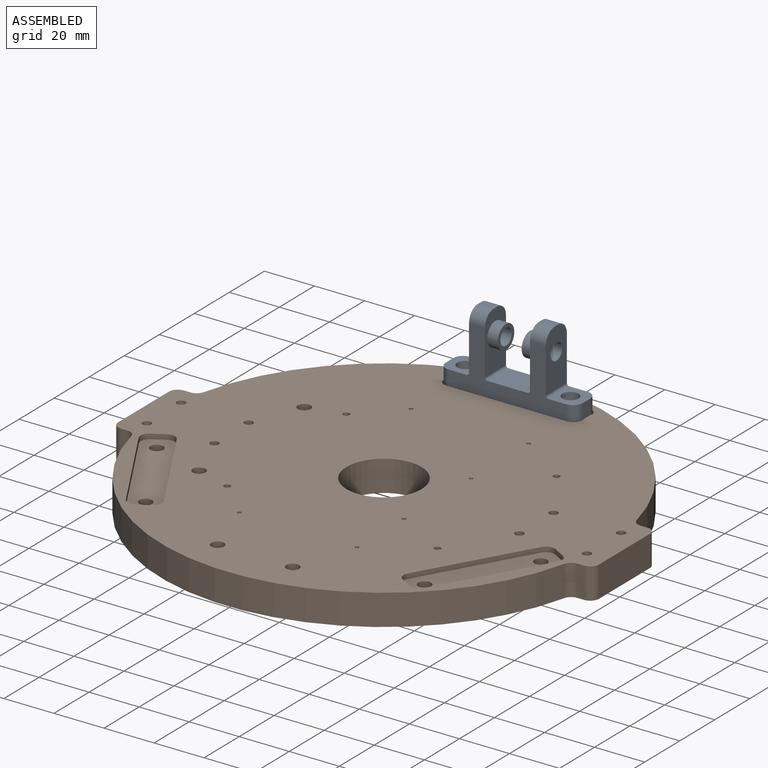
[diagram: assembled view]
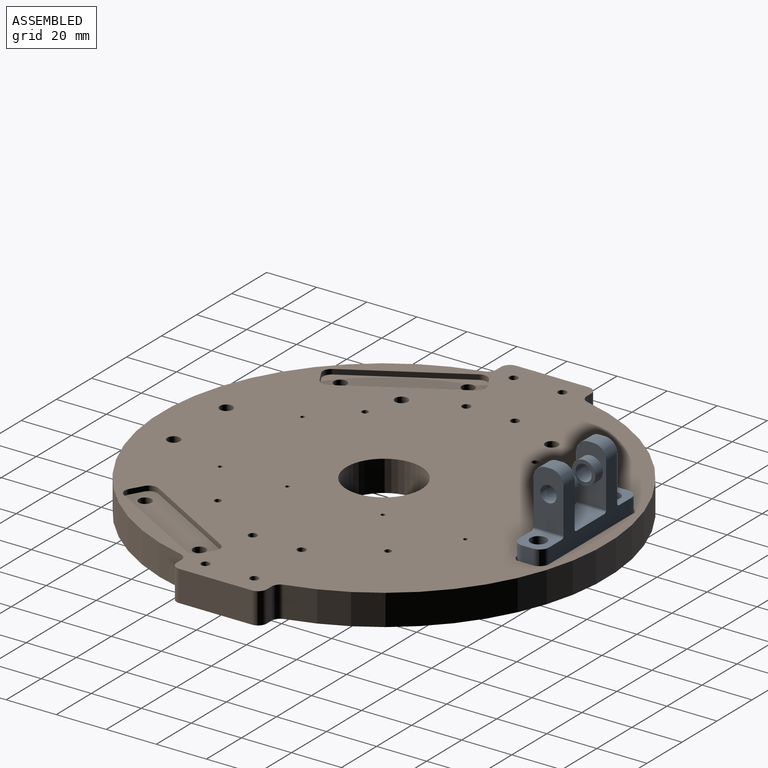
[diagram: assembled view, second angle]
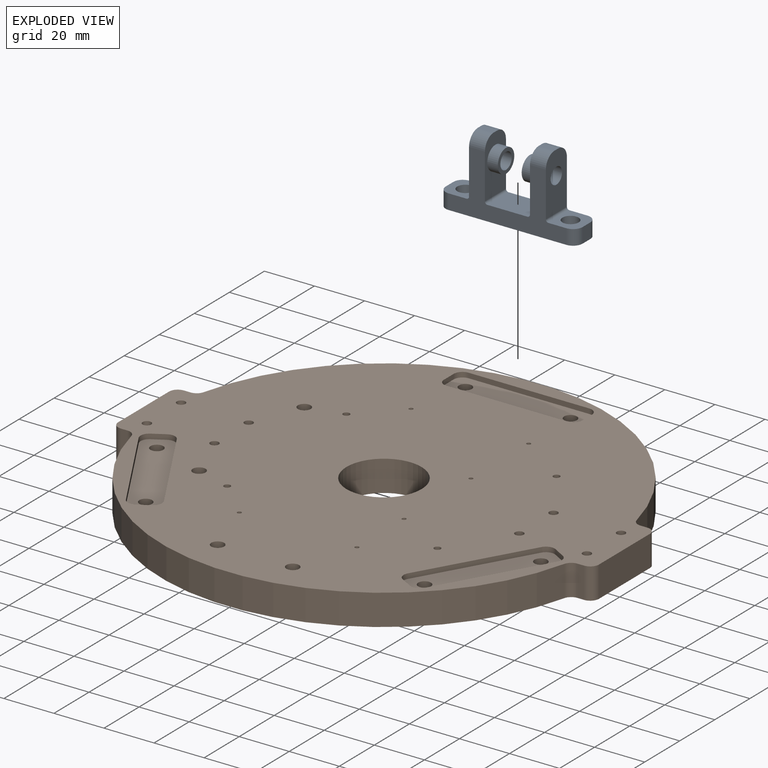
[diagram: exploded view]
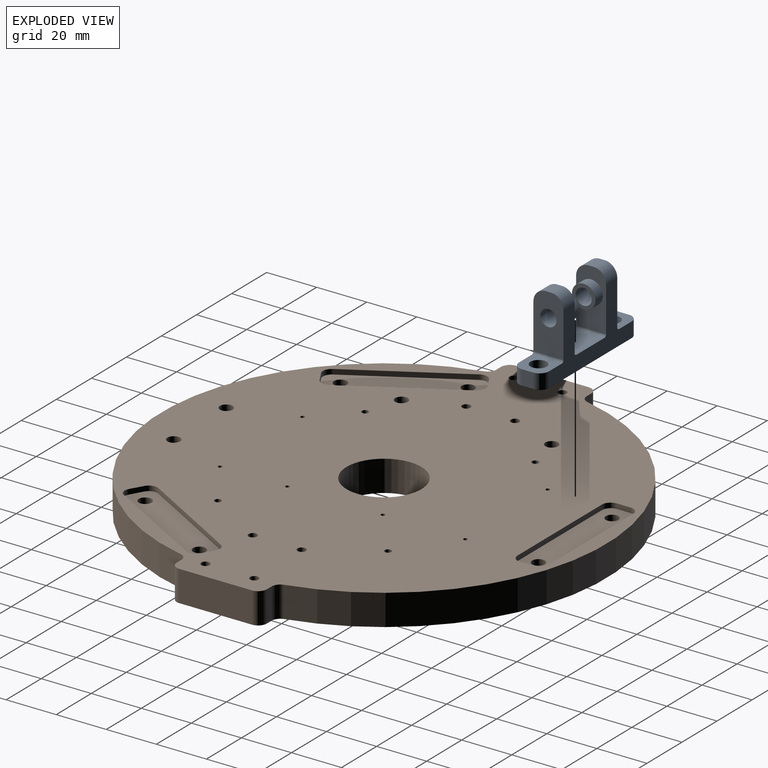
[diagram: exploded view, second angle]
ASSEMBLY  parts=2 mates=2
PART A: 34 faces, bbox 54.7x29.9x12 mm
  f0: cylinder r=3.25mm len=10.59mm, axis (1,0,0), area 216.2mm2, adj f9,f19
  f1: cylinder r=4.7mm len=9.4mm, axis (-1,0,0), area 125.1mm2, adj f3,f19
  f2: plane 6.35x2mm, normal (0,-1,0), area 12.7mm2, adj f3,f9,f14,f16
  f3: plane 22.95x12mm, normal (1,0,0), area 195.2mm2, adj f1,f2,f10,f11,f14,f16,f32
  f4: plane 16x12mm, normal (0,-1,0), area 192mm2, adj f10,f11,f32,f33
  f5: plane 22.95x12mm, normal (-1,0,0), area 195.2mm2, adj f6,f10,f11,f13,f15,f17,f33
  f6: plane 6.35x2mm, normal (0,-1,0), area 12.7mm2, adj f5,f7,f13,f15
  f7: plane 22.95x12mm, normal (1,0,0), area 231.4mm2, adj f6,f10,f11,f12,f13,f15,f31
  f8: plane 54.7x12mm, normal (0,1,0), area 577.6mm2, adj f10,f11,f21,f23,f24,f25,f26,f27
  f9: plane 22.95x12mm, normal (-1,0,0), area 231.4mm2, adj f0,f2,f10,f11,f14,f16,f30
  f10: plane 47.1x24.95mm, normal (0,0,1), area 524.1mm2, adj f3,f4,f5,f7,f8,f9,f15,f16
  f11: plane 47.1x24.95mm, normal (0,0,-1), area 524.1mm2, adj f3,f4,f5,f7,f8,f9,f13,f14
  f12: cylinder r=3.25mm len=10.59mm, axis (1,0,0), area 216.2mm2, adj f7,f18
  f13: cylinder r=5mm len=6.35mm, axis (1,0,0), area 49.9mm2, adj f5,f6,f7,f11
  f14: cylinder r=5mm len=6.35mm, axis (1,0,0), area 49.9mm2, adj f2,f3,f9,f11
  f15: cylinder r=5mm len=6.35mm, axis (-1,0,0), area 49.9mm2, adj f5,f6,f7,f10
  f16: cylinder r=5mm len=6.35mm, axis (-1,0,0), area 49.9mm2, adj f2,f3,f9,f10
  f17: cylinder r=4.7mm len=9.4mm, axis (-1,0,0), area 125.1mm2, adj f5,f18
  f18: plane 9.4x9.4mm, normal (-1,0,0), area 36.2mm2, adj f12,f17
  f19: plane 9.4x9.4mm, normal (1,0,0), area 36.2mm2, adj f0,f1
  f20: plane 12x11mm, normal (0,-1,0), area 92.6mm2, adj f10,f11,f21,f26,f27,f29,f31
  f21: plane 6x4.4mm, normal (1,0,0), area 26.4mm2, adj f8,f20,f26,f27
  f22: plane 12x11mm, normal (0,-1,0), area 92.6mm2, adj f10,f11,f23,f24,f25,f28,f30
  f23: plane 6x4.4mm, normal (-1,0,0), area 26.4mm2, adj f8,f22,f24,f25
  f24: cylinder r=3.8mm len=6mm, axis (0,1,0), area 35.8mm2, adj f8,f10,f22,f23
  f25: cylinder r=3.8mm len=6mm, axis (0,-1,0), area 35.8mm2, adj f8,f11,f22,f23
  f26: cylinder r=3.8mm len=6mm, axis (0,1,0), area 35.8mm2, adj f8,f11,f20,f21
  f27: cylinder r=3.8mm len=6mm, axis (0,-1,0), area 35.8mm2, adj f8,f10,f20,f21
  f28: cylinder r=3.25mm len=6.5mm, axis (0,-1,0), area 122.5mm2, adj f8,f22
  f29: cylinder r=3.25mm len=6.5mm, axis (0,-1,0), area 122.5mm2, adj f8,f20
  f30: cylinder r=1mm len=12mm, axis (0,0,1), area 18.8mm2, adj f9,f10,f11,f22
  f31: cylinder r=1mm len=12mm, axis (0,0,-1), area 18.8mm2, adj f7,f10,f11,f20
  f32: cylinder r=1mm len=12mm, axis (0,0,1), area 18.8mm2, adj f3,f4,f10,f11
  f33: cylinder r=1mm len=12mm, axis (0,0,1), area 18.8mm2, adj f4,f5,f10,f11
PART B: 84 faces, bbox 192.1x177.8x12.4 mm
  f0: plane 192.12x177.8mm, normal (0,0,1), area 22450.5mm2, adj f2,f3,f4,f5,f6,f7,f8,f9
  f1: plane 192.12x177.8mm, normal (0,0,-1), area 24399.5mm2, adj f2,f3,f4,f5,f6,f7,f8,f9
  f2: plane 12.37x2.7mm, normal (0,-1,0), area 33.3mm2, adj f0,f1,f56,f63
  f3: cylinder r=88.9mm len=172.92mm, axis (0,0,-1), area 2938.2mm2, adj f0,f1,f56,f57
  f4: plane 12.37x2.7mm, normal (0,-1,0), area 33.3mm2, adj f0,f1,f57,f58
  f5: plane 29x12.37mm, normal (1,0,0), area 358.7mm2, adj f0,f1,f58,f59
  f6: plane 12.37x2.7mm, normal (0,1,0), area 33.3mm2, adj f0,f1,f59,f60
  f7: cylinder r=88.9mm len=172.92mm, axis (0,0,-1), area 2938.2mm2, adj f0,f1,f60,f61
  f8: plane 12.37x2.7mm, normal (0,1,0), area 33.3mm2, adj f0,f1,f61,f62
  f9: plane 29x12.37mm, normal (-1,0,0), area 358.7mm2, adj f0,f1,f62,f63
  f10: cylinder r=15mm len=30mm, axis (0,0,1), area 1165.8mm2, adj f0,f1
  f11: plane 4.76x2.75mm, normal (0.5,0.87,0), area 11mm2, adj f0,f15,f26,f29
  f12: plane 41.74x24.1mm, normal (-0.87,0.5,0), area 96.4mm2, adj f0,f15,f28,f29
  f13: plane 4.76x2.75mm, normal (-0.5,-0.87,0), area 11mm2, adj f0,f15,f27,f28
  f14: plane 41.74x24.1mm, normal (0.87,-0.5,0), area 96.4mm2, adj f0,f15,f26,f27
  f15: plane 51.49x35.86mm, normal (0,0,1), area 638.5mm2, adj f11,f12,f13,f14,f26,f27,f28,f29
  f16: plane 4.76x2.75mm, normal (0.5,-0.87,0), area 11mm2, adj f0,f20,f30,f33
  f17: plane 41.74x24.1mm, normal (0.87,0.5,0), area 96.4mm2, adj f0,f20,f30,f31
  f18: plane 4.76x2.75mm, normal (-0.5,0.87,0), area 11mm2, adj f0,f20,f31,f32
  f19: plane 41.74x24.1mm, normal (-0.87,-0.5,0), area 96.4mm2, adj f0,f20,f32,f33
  f20: plane 51.49x35.86mm, normal (0,0,1), area 638.5mm2, adj f16,f17,f18,f19,f30,f31,f32,f33
  f21: plane 48.2x2mm, normal (0,-1,0), area 96.4mm2, adj f0,f25,f34,f37
  f22: plane 5.5x2mm, normal (1,0,0), area 11mm2, adj f0,f25,f36,f37
  f23: plane 48.2x2mm, normal (0,1,0), area 96.4mm2, adj f0,f25,f35,f36
  f24: plane 5.5x2mm, normal (-1,0,0), area 11mm2, adj f0,f25,f34,f35
  f25: plane 55.2x12.5mm, normal (0,0,1), area 638.5mm2, adj f21,f22,f23,f24,f34,f35,f36,f37
  f26: cylinder r=3.5mm len=4.78mm, axis (0,0,1), area 11mm2, adj f0,f11,f14,f15
  f27: cylinder r=3.5mm len=4.78mm, axis (0,0,-1), area 11mm2, adj f0,f13,f14,f15
  f28: cylinder r=3.5mm len=4.78mm, axis (0,0,1), area 11mm2, adj f0,f12,f13,f15
  f29: cylinder r=3.5mm len=4.78mm, axis (0,0,-1), area 11mm2, adj f0,f11,f12,f15
  f30: cylinder r=3.5mm len=4.78mm, axis (0,0,-1), area 11mm2, adj f0,f16,f17,f20
  f31: cylinder r=3.5mm len=4.78mm, axis (0,0,1), area 11mm2, adj f0,f17,f18,f20
  f32: cylinder r=3.5mm len=4.78mm, axis (0,0,-1), area 11mm2, adj f0,f18,f19,f20
  f33: cylinder r=3.5mm len=4.78mm, axis (0,0,1), area 11mm2, adj f0,f16,f19,f20
  f34: cylinder r=3.5mm len=3.5mm, axis (0,0,-1), area 11mm2, adj f0,f21,f24,f25
  f35: cylinder r=3.5mm len=3.5mm, axis (0,0,1), area 11mm2, adj f0,f23,f24,f25
  f36: cylinder r=3.5mm len=3.5mm, axis (0,0,-1), area 11mm2, adj f0,f22,f23,f25
  f37: cylinder r=3.5mm len=3.5mm, axis (0,0,1), area 11mm2, adj f0,f21,f22,f25
  f38: cylinder r=2.55mm len=10.37mm, axis (0,0,1), area 166.3mm2, adj f1,f25
  f39: cylinder r=2.55mm len=10.37mm, axis (0,0,1), area 166.3mm2, adj f1,f25
  f40: cylinder r=2.55mm len=10.37mm, axis (0,0,1), area 166.3mm2, adj f1,f20
  f41: cylinder r=2.55mm len=10.37mm, axis (0,0,1), area 166.3mm2, adj f1,f20
  f42: cylinder r=2.55mm len=10.37mm, axis (0,0,1), area 166.3mm2, adj f1,f15
  f43: cylinder r=2.55mm len=10.37mm, axis (0,0,1), area 166.3mm2, adj f1,f15
  f44: cylinder r=2.55mm len=12.37mm, axis (0,0,-1), area 198.4mm2, adj f0,f1
  f45: cylinder r=1.7mm len=12.37mm, axis (0,0,-1), area 132.1mm2, adj f0,f1
  f46: cylinder r=1.7mm len=12.37mm, axis (0,0,-1), area 132.1mm2, adj f0,f1
  f47: cylinder r=1.7mm len=12.37mm, axis (0,0,-1), area 132.1mm2, adj f0,f1
  f48: cylinder r=2.55mm len=12.37mm, axis (0,0,-1), area 198.4mm2, adj f0,f1
  f49: cylinder r=2.55mm len=12.37mm, axis (0,0,-1), area 198.4mm2, adj f0,f1
  f50: cylinder r=2.55mm len=12.37mm, axis (0,0,-1), area 198.4mm2, adj f0,f1
  f51: cylinder r=1.7mm len=12.37mm, axis (0,0,-1), area 132.1mm2, adj f0,f1
  f52: cylinder r=1.7mm len=12.37mm, axis (0,0,-1), area 132.1mm2, adj f0,f1
  f53: cylinder r=1.7mm len=12.37mm, axis (0,0,-1), area 132.1mm2, adj f0,f1
  f54: cylinder r=1.7mm len=12.37mm, axis (0,0,-1), area 132.1mm2, adj f0,f1
  f55: cylinder r=1.7mm len=12.37mm, axis (0,0,-1), area 132.1mm2, adj f0,f1
  f56: cylinder r=3.5mm len=12.37mm, axis (0,0,-1), area 57.8mm2, adj f0,f1,f2,f3
  f57: cylinder r=3.5mm len=12.37mm, axis (0,0,-1), area 57.8mm2, adj f0,f1,f3,f4
  f58: cylinder r=3.5mm len=12.37mm, axis (0,0,-1), area 68mm2, adj f0,f1,f4,f5
  f59: cylinder r=3.5mm len=12.37mm, axis (0,0,1), area 68mm2, adj f0,f1,f5,f6
  f60: cylinder r=3.5mm len=12.37mm, axis (0,0,-1), area 57.8mm2, adj f0,f1,f6,f7
  f61: cylinder r=3.5mm len=12.37mm, axis (0,0,-1), area 57.8mm2, adj f0,f1,f7,f8
  f62: cylinder r=3.5mm len=12.37mm, axis (0,0,1), area 68mm2, adj f0,f1,f8,f9
  f63: cylinder r=3.5mm len=12.37mm, axis (0,0,-1), area 68mm2, adj f0,f1,f2,f9
  f64: cylinder r=0.8mm len=6mm, axis (0,0,1), area 30.2mm2, adj f0,f65
  f65: plane 1.6x1.6mm, normal (0,0,1), area 2mm2, adj f64
  f66: cylinder r=1.3mm len=6mm, axis (0,0,1), area 49mm2, adj f0,f67
  f67: plane 2.6x2.6mm, normal (0,0,1), area 5.3mm2, adj f66
  f68: cylinder r=0.8mm len=6mm, axis (0,0,1), area 30.2mm2, adj f0,f69
  f69: plane 1.6x1.6mm, normal (0,0,1), area 2mm2, adj f68
  f70: cylinder r=0.8mm len=6mm, axis (0,0,1), area 30.2mm2, adj f0,f71
  f71: plane 1.6x1.6mm, normal (0,0,1), area 2mm2, adj f70
  f72: cylinder r=0.8mm len=6mm, axis (0,0,1), area 30.2mm2, adj f0,f73
  f73: plane 1.6x1.6mm, normal (0,0,1), area 2mm2, adj f72
  f74: cylinder r=0.8mm len=6mm, axis (0,0,1), area 30.2mm2, adj f0,f75
  f75: plane 1.6x1.6mm, normal (0,0,1), area 2mm2, adj f74
  f76: cylinder r=1.3mm len=6mm, axis (0,0,1), area 49mm2, adj f0,f77
  f77: plane 2.6x2.6mm, normal (0,0,1), area 5.3mm2, adj f76
  f78: cylinder r=1.3mm len=6mm, axis (0,0,1), area 49mm2, adj f0,f79
  f79: plane 2.6x2.6mm, normal (0,0,1), area 5.3mm2, adj f78
  f80: cylinder r=1.3mm len=6mm, axis (0,0,1), area 49mm2, adj f0,f81
  f81: plane 2.6x2.6mm, normal (0,0,1), area 5.3mm2, adj f80
  f82: cylinder r=0.8mm len=6mm, axis (0,0,1), area 30.2mm2, adj f0,f83
  f83: plane 1.6x1.6mm, normal (0,0,1), area 2mm2, adj f82
PLACE A rot(axis=(-1,0,0),90deg) t=(0.39,69.67,61.57)mm
PLACE B t=(0.39,-0.78,28.7)mm fixed
MATE slider B.f38 <-> A.f28  axis (0,0,1) through (-20.61,75.67,39.07)mm
MATE planar A.f8 <-> B.f0  axis (0,0,-1) through (0.39,75.67,41.07)mm
